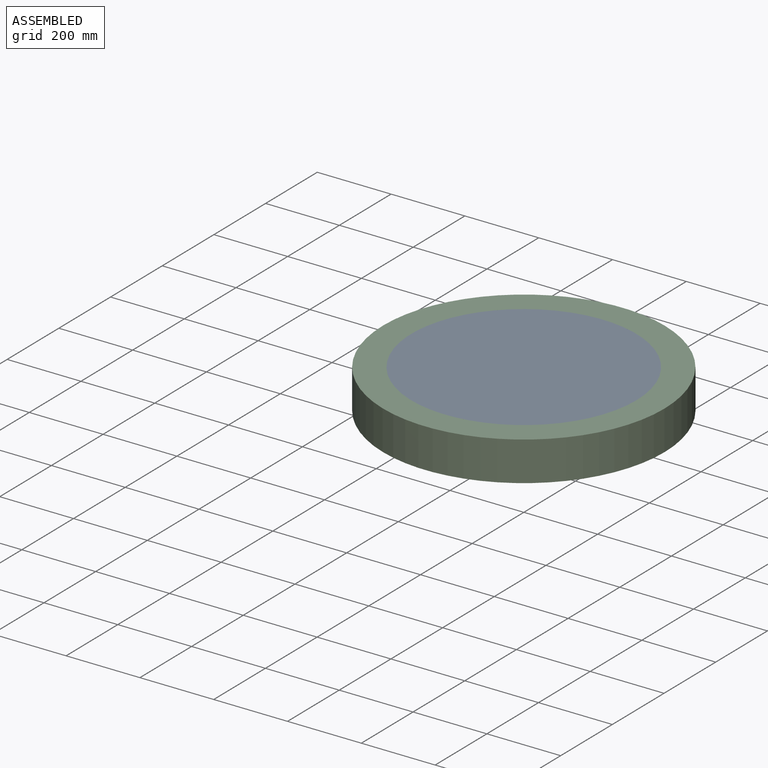
[diagram: assembled view]
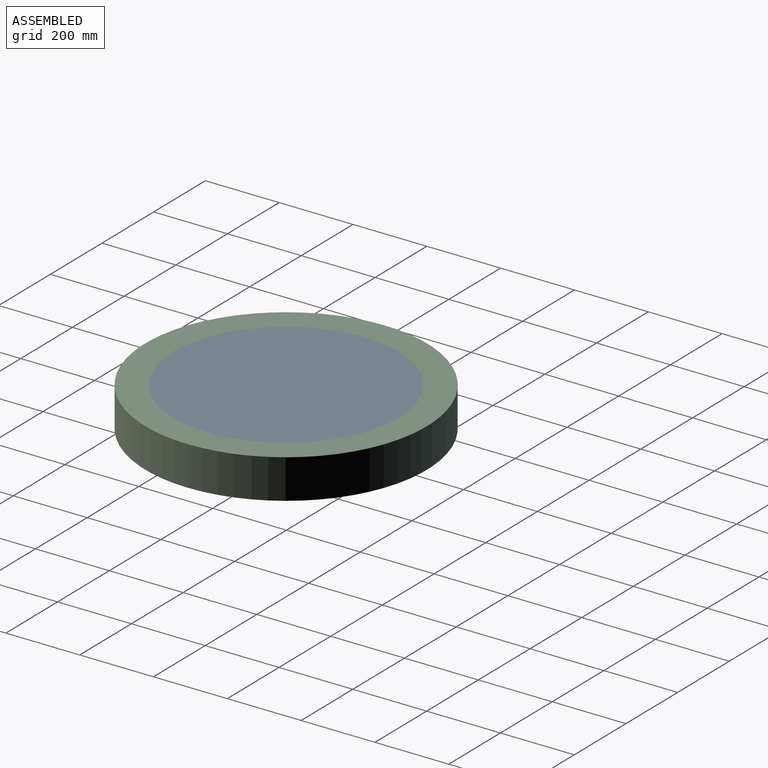
[diagram: assembled view, second angle]
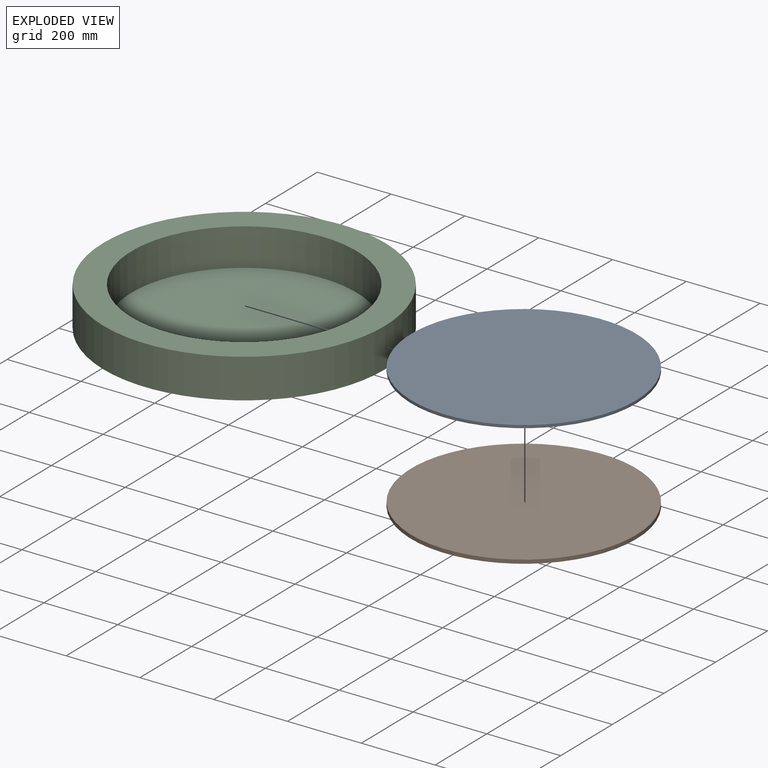
[diagram: exploded view]
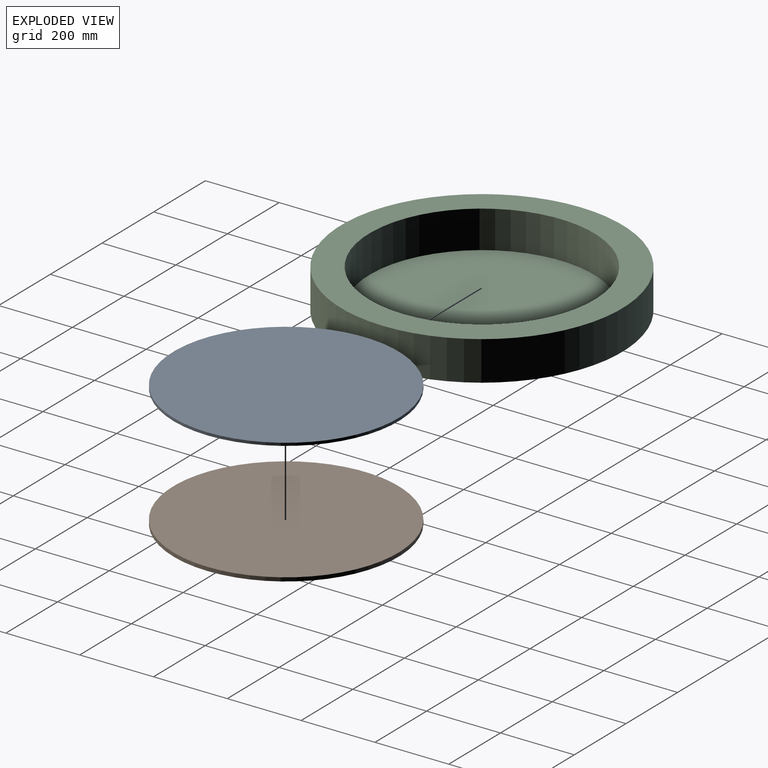
[diagram: exploded view, second angle]
ASSEMBLY  parts=3 mates=2
PART A: 3 faces, bbox 609.6x609.6x7.6 mm
  f0: cylinder r=304.8mm len=609.6mm, axis (0,0,-1), area 14593.2mm2, adj f1,f2
  f1: plane 609.6x609.6mm, normal (0,0,1), area 291863.5mm2, adj f0
  f2: plane 609.6x609.6mm, normal (0,0,-1), area 291863.5mm2, adj f0
PART B: 3 faces, bbox 609.6x609.6x10.2 mm
  f0: cylinder r=304.8mm len=609.6mm, axis (0,0,-1), area 19457.6mm2, adj f1,f2
  f1: plane 609.6x609.6mm, normal (0,0,1), area 291863.5mm2, adj f0
  f2: plane 609.6x609.6mm, normal (0,0,-1), area 291863.5mm2, adj f0
PART C: 5 faces, bbox 762x762x106.7 mm
  f0: cylinder r=304.8mm len=609.6mm, axis (0,0,-1), area 194575.7mm2, adj f2,f3
  f1: cylinder r=381mm len=762mm, axis (0,0,-1), area 255380.6mm2, adj f2,f4
  f2: plane 762x762mm, normal (0,0,1), area 164173.2mm2, adj f0,f1
  f3: plane 609.6x609.6mm, normal (0,0,1), area 291863.5mm2, adj f0
  f4: plane 762x762mm, normal (0,0,-1), area 456036.7mm2, adj f1
PLACE A rot(axis=(1,0,0),180deg) t=(0.31,14.72,52.28)mm
PLACE B t=(0.31,-0.53,-49.32)mm
PLACE C t=(0.31,-0.53,-49.32)mm
MATE slider B.f0 <-> C.f0  axis (0,0,-1) through (0.31,-0.53,-49.32)mm
MATE slider A.f0 <-> C.f0  axis (0,0,1) through (0.31,-0.53,52.28)mm
